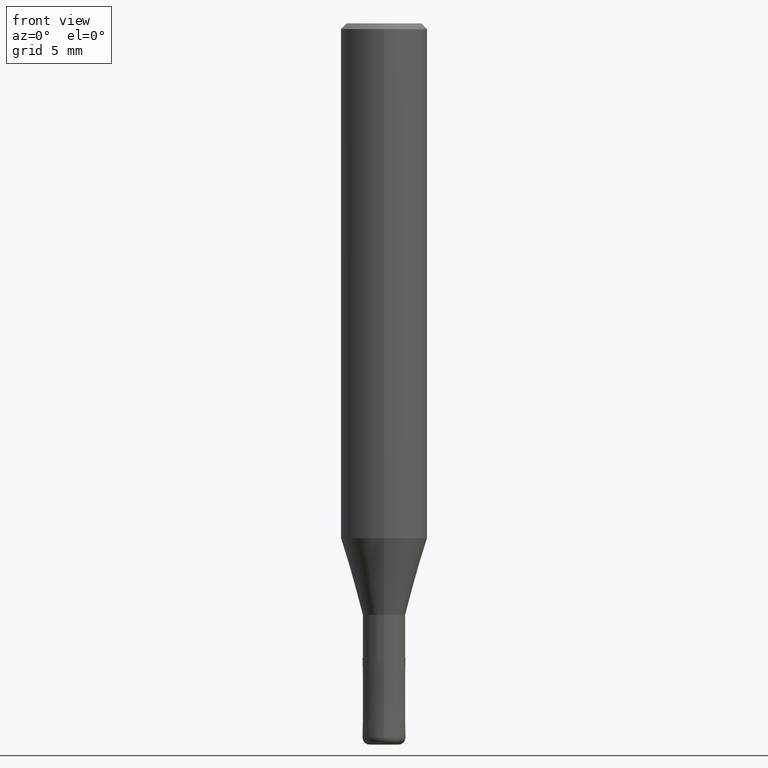
[diagram: clean part render]
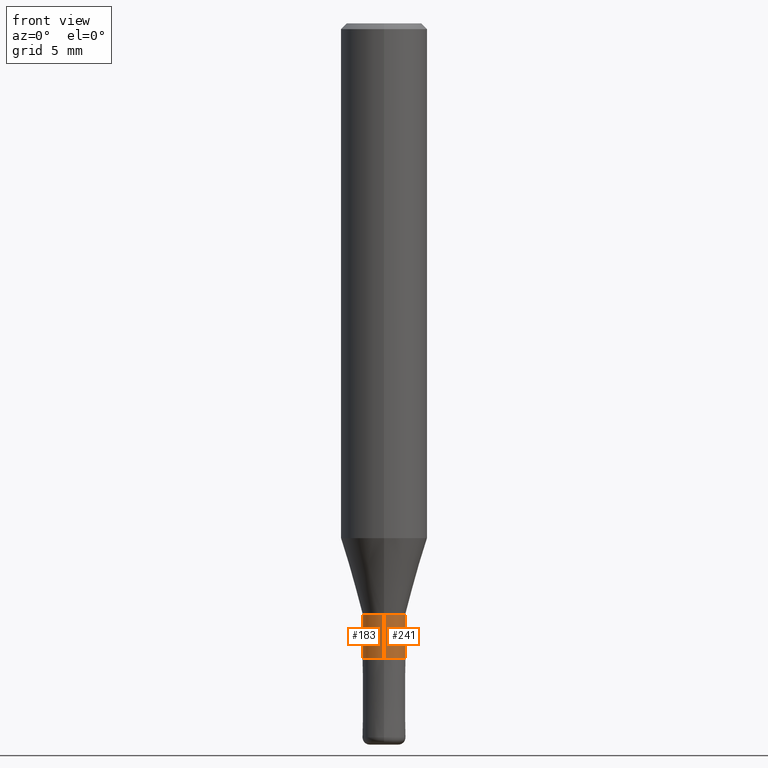
[diagram: same view with one multi-face feature highlighted, each face labeled with its STEP entity id]
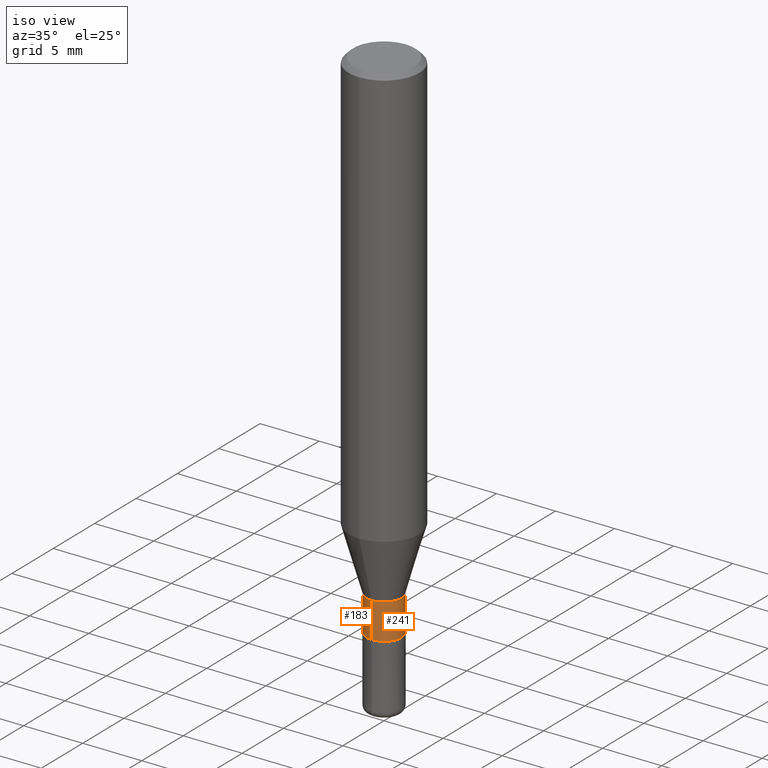
[diagram: same view with one multi-face feature highlighted, each face labeled with its STEP entity id]
A machine part, front view. The highlighted faces form ONE feature: a constant-radius fillet chain: 2 tangent blend faces with common blend radius 1.4749 mm. The faces share edges in the B-rep.
A second angle (iso view) of the same feature is appended — it is thin or edge-on in the first view.
Their STEP definitions:
[1] entity #183 (Cylinder):
#145=VERTEX_POINT('',#350);
#163=EDGE_CURVE('',#145,#227,#370,.T.);
#173=EDGE_CURVE('',#203,#275,#382,.T.);
#183=ADVANCED_FACE('',(#392),#393,.T.);
#197=EDGE_CURVE('',#145,#203,#408,.T.);
#203=VERTEX_POINT('',#414);
#227=VERTEX_POINT('',#440);
#229=EDGE_CURVE('',#275,#227,#442,.T.);
#275=VERTEX_POINT('',#499);
#350=CARTESIAN_POINT('',(1.80623314157032E-016,-1.47495,-44.0));
#370=CIRCLE('',#603,1.47495);
#382=CIRCLE('',#617,1.47495);
#392=FACE_OUTER_BOUND('',#631,.T.);
#393=CYLINDRICAL_SURFACE('',#632,1.47495);
#408=LINE('',#653,#654);
#414=CARTESIAN_POINT('',(1.80623314157032E-016,-1.47495,-41.0));
#440=CARTESIAN_POINT('',(0.0,1.47495,-44.0));
#442=LINE('',#695,#696);
#499=CARTESIAN_POINT('',(0.0,1.47495,-41.0));
#603=AXIS2_PLACEMENT_3D('',#860,#861,#862);
#617=AXIS2_PLACEMENT_3D('',#882,#883,#884);
#631=EDGE_LOOP('',(#893,#894,#895,#896));
#632=AXIS2_PLACEMENT_3D('',#897,#898,#899);
#653=CARTESIAN_POINT('',(1.80623314157032E-016,-1.47495,-42.5));
#654=VECTOR('',#913,1.0);
#695=CARTESIAN_POINT('',(-1.80623314157032E-016,1.47495,-42.5));
#696=VECTOR('',#948,1.0);
#860=CARTESIAN_POINT('',(0.0,0.0,-44.0));
#861=DIRECTION('',(0.0,0.0,-1.0));
#862=DIRECTION('',(0.0,1.0,0.0));
#882=CARTESIAN_POINT('',(0.0,0.0,-41.0));
#883=DIRECTION('',(0.0,0.0,-1.0));
#884=DIRECTION('',(0.0,1.0,0.0));
#893=ORIENTED_EDGE('',*,*,#229,.T.);
#894=ORIENTED_EDGE('',*,*,#163,.F.);
#895=ORIENTED_EDGE('',*,*,#197,.T.);
#896=ORIENTED_EDGE('',*,*,#173,.T.);
#897=CARTESIAN_POINT('',(0.0,0.0,-42.5));
#898=DIRECTION('',(-0.0,-0.0,1.0));
#899=DIRECTION('',(0.0,1.0,0.0));
#913=DIRECTION('',(-0.0,-0.0,1.0));
#948=DIRECTION('',(0.0,0.0,-1.0));
[2] entity #241 (Cylinder):
#145=VERTEX_POINT('',#350);
#177=EDGE_CURVE('',#275,#203,#386,.T.);
#197=EDGE_CURVE('',#145,#203,#408,.T.);
#203=VERTEX_POINT('',#414);
#227=VERTEX_POINT('',#440);
#229=EDGE_CURVE('',#275,#227,#442,.T.);
#235=EDGE_CURVE('',#227,#145,#450,.T.);
#241=ADVANCED_FACE('',(#456),#457,.T.);
#275=VERTEX_POINT('',#499);
#350=CARTESIAN_POINT('',(1.80623314157032E-016,-1.47495,-44.0));
#386=CIRCLE('',#622,1.47495);
#408=LINE('',#653,#654);
#414=CARTESIAN_POINT('',(1.80623314157032E-016,-1.47495,-41.0));
#440=CARTESIAN_POINT('',(0.0,1.47495,-44.0));
#442=LINE('',#695,#696);
#450=CIRCLE('',#706,1.47495);
#456=FACE_OUTER_BOUND('',#714,.T.);
#457=CYLINDRICAL_SURFACE('',#715,1.47495);
#499=CARTESIAN_POINT('',(0.0,1.47495,-41.0));
#622=AXIS2_PLACEMENT_3D('',#885,#886,#887);
#653=CARTESIAN_POINT('',(1.80623314157032E-016,-1.47495,-42.5));
#654=VECTOR('',#913,1.0);
#695=CARTESIAN_POINT('',(-1.80623314157032E-016,1.47495,-42.5));
#696=VECTOR('',#948,1.0);
#706=AXIS2_PLACEMENT_3D('',#960,#961,#962);
#714=EDGE_LOOP('',(#970,#971,#972,#973));
#715=AXIS2_PLACEMENT_3D('',#974,#975,#976);
#885=CARTESIAN_POINT('',(0.0,0.0,-41.0));
#886=DIRECTION('',(0.0,0.0,-1.0));
#887=DIRECTION('',(0.0,1.0,0.0));
#913=DIRECTION('',(-0.0,-0.0,1.0));
#948=DIRECTION('',(0.0,0.0,-1.0));
#960=CARTESIAN_POINT('',(0.0,0.0,-44.0));
#961=DIRECTION('',(0.0,0.0,-1.0));
#962=DIRECTION('',(0.0,1.0,0.0));
#970=ORIENTED_EDGE('',*,*,#229,.F.);
#971=ORIENTED_EDGE('',*,*,#177,.T.);
#972=ORIENTED_EDGE('',*,*,#197,.F.);
#973=ORIENTED_EDGE('',*,*,#235,.F.);
#974=CARTESIAN_POINT('',(0.0,0.0,-42.5));
#975=DIRECTION('',(-0.0,-0.0,1.0));
#976=DIRECTION('',(0.0,1.0,0.0));